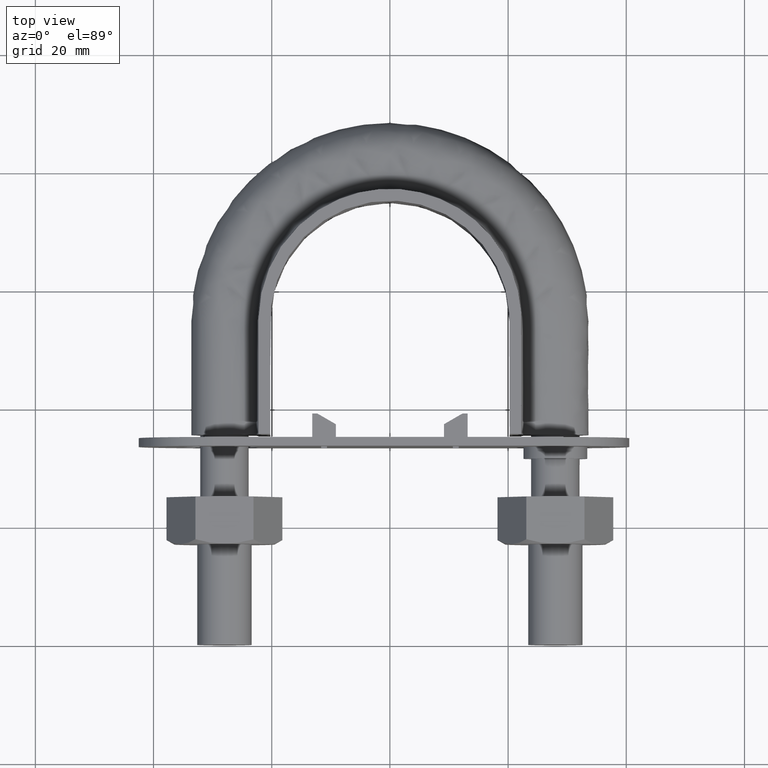
[diagram: clean part render]
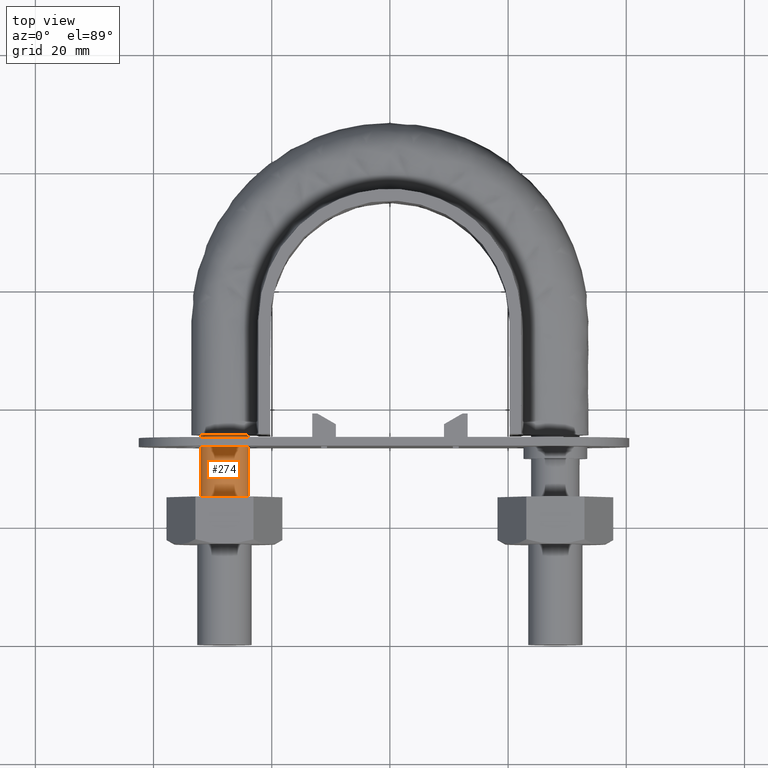
[diagram: same view with one face highlighted and labeled with its STEP entity id]
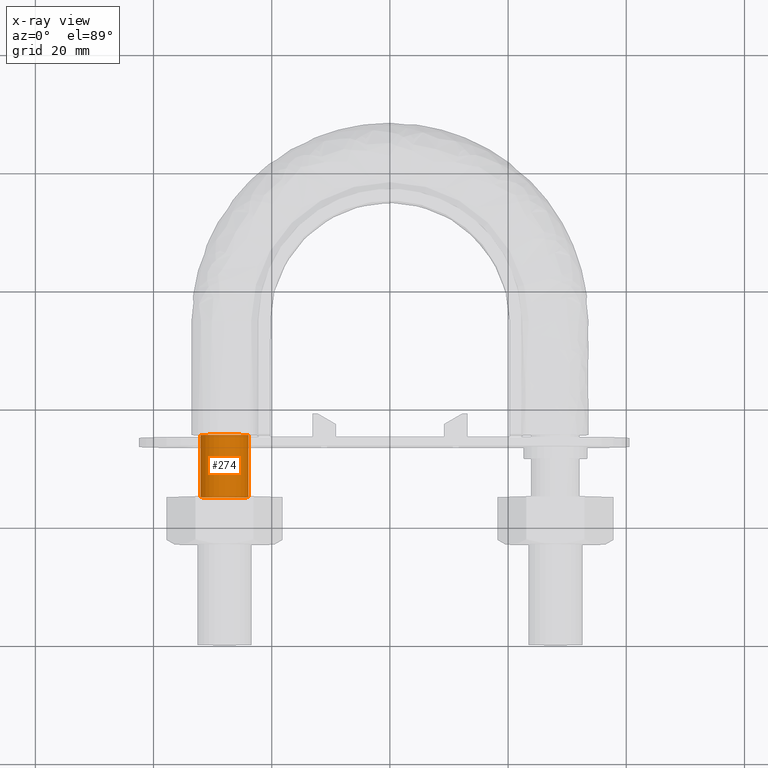
[diagram: x-ray of the same camera — body ghosted, the highlighted face saturated]
A machine part, top view. The second image highlights one B-rep face of the part: STEP entity #274.
The next image is the same camera in x-ray: the body ghosted, the highlighted face saturated — about 0% of this face is hidden behind the body in this view.
In plain terms, the highlighted cylindrical surface (bore or boss wall) has radius 4.1 mm, axis along (0, 1, 0).
Its self-contained STEP definition (entity closure, byte-faithful):
#274 = ADVANCED_FACE( '', ( #398, #399 ), #400, .T. );
#398 = FACE_OUTER_BOUND( '', #1331, .T. );
#399 = FACE_OUTER_BOUND( '', #1332, .T. );
#400 = CYLINDRICAL_SURFACE( '', #1333, 4.10000000000000 );
#1331 = EDGE_LOOP( '', ( #1778, #1779, #1780, #1781, #1782, #1783, #1784 ) );
#1332 = EDGE_LOOP( '', ( #1785 ) );
#1333 = AXIS2_PLACEMENT_3D( '', #1786, #1787, #1788 );
#1778 = ORIENTED_EDGE( '', *, *, #2559, .T. );
#1779 = ORIENTED_EDGE( '', *, *, #2560, .T. );
#1780 = ORIENTED_EDGE( '', *, *, #2561, .T. );
#1781 = ORIENTED_EDGE( '', *, *, #2562, .T. );
#1782 = ORIENTED_EDGE( '', *, *, #2563, .T. );
#1783 = ORIENTED_EDGE( '', *, *, #2564, .T. );
#1784 = ORIENTED_EDGE( '', *, *, #2565, .T. );
#1785 = ORIENTED_EDGE( '', *, *, #2566, .T. );
#1786 = CARTESIAN_POINT( '', ( -28.0000000000000, 35.5000000000000, 6.52102883410416E-015 ) );
#1787 = DIRECTION( '', ( 1.22460635382238E-016, 1.00000000000000, 1.83690953073357E-016 ) );
#1788 = DIRECTION( '', ( -1.00000000000000, 1.22460635382238E-016, 0.000000000000000 ) );
#2559 = EDGE_CURVE( '', #2809, #2810, #2811, .T. );
#2560 = EDGE_CURVE( '', #2810, #2812, #2813, .T. );
#2561 = EDGE_CURVE( '', #2812, #2814, #2815, .T. );
#2562 = EDGE_CURVE( '', #2814, #2816, #2817, .T. );
#2563 = EDGE_CURVE( '', #2816, #2818, #2819, .T. );
#2564 = EDGE_CURVE( '', #2818, #2820, #2821, .T. );
#2565 = EDGE_CURVE( '', #2820, #2809, #2822, .T. );
#2566 = EDGE_CURVE( '', #2823, #2823, #2824, .F. );
#2809 = VERTEX_POINT( '', #3403 );
#2810 = VERTEX_POINT( '', #3404 );
#2811 = CIRCLE( '', #3405, 4.10000000000000 );
#2812 = VERTEX_POINT( '', #3406 );
#2813 = CIRCLE( '', #3407, 4.10000000000000 );
#2814 = VERTEX_POINT( '', #3408 );
#2815 = CIRCLE( '', #3409, 4.10000000000000 );
#2816 = VERTEX_POINT( '', #3410 );
#2817 = CIRCLE( '', #3411, 4.10000000000000 );
#2818 = VERTEX_POINT( '', #3412 );
#2819 = CIRCLE( '', #3413, 4.10000000000000 );
#2820 = VERTEX_POINT( '', #3414 );
#2821 = CIRCLE( '', #3415, 4.10000000000000 );
#2822 = CIRCLE( '', #3416, 4.10000000000000 );
#2823 = VERTEX_POINT( '', #3417 );
#2824 = CIRCLE( '', #3418, 4.10000000000000 );
#3403 = CARTESIAN_POINT( '', ( -31.6939723583997, 35.5000000000000, -1.77892333038237 ) );
#3404 = CARTESIAN_POINT( '', ( -28.9123358292207, 35.5000000000000, -3.99720443994551 ) );
#3405 = AXIS2_PLACEMENT_3D( '', #4069, #4070, #4071 );
#3406 = CARTESIAN_POINT( '', ( -25.4436918123793, 35.5000000000000, -3.20550907811899 ) );
#3407 = AXIS2_PLACEMENT_3D( '', #4072, #4073, #4074 );
#3408 = CARTESIAN_POINT( '', ( -23.9000000000000, 35.5000000000000, 5.46776531644228E-014 ) );
#3409 = AXIS2_PLACEMENT_3D( '', #4075, #4076, #4077 );
#3410 = CARTESIAN_POINT( '', ( -25.4436918123815, 35.5000000000000, 3.20550907812074 ) );
#3411 = AXIS2_PLACEMENT_3D( '', #4078, #4079, #4080 );
#3412 = CARTESIAN_POINT( '', ( -28.9123358292214, 35.5000000000000, 3.99720443994537 ) );
#3413 = AXIS2_PLACEMENT_3D( '', #4081, #4082, #4083 );
#3414 = CARTESIAN_POINT( '', ( -31.6939723584001, 35.5000000000000, 1.77892333038158 ) );
#3415 = AXIS2_PLACEMENT_3D( '', #4084, #4085, #4086 );
#3416 = AXIS2_PLACEMENT_3D( '', #4087, #4088, #4089 );
#3417 = CARTESIAN_POINT( '', ( -28.0000000000000, 25.0000000000000, 4.10000000000001 ) );
#3418 = AXIS2_PLACEMENT_3D( '', #4090, #4091, #4092 );
#4069 = CARTESIAN_POINT( '', ( -28.0000000000000, 35.5000000000000, 6.52102883410416E-015 ) );
#4070 = DIRECTION( '', ( -1.22460635382238E-016, -1.00000000000000, -1.83690953073357E-016 ) );
#4071 = DIRECTION( '', ( -1.00000000000000, 1.22460635382238E-016, 0.000000000000000 ) );
#4072 = CARTESIAN_POINT( '', ( -28.0000000000000, 35.5000000000000, 6.52102883410416E-015 ) );
#4073 = DIRECTION( '', ( -1.22460635382238E-016, -1.00000000000000, -1.83690953073357E-016 ) );
#4074 = DIRECTION( '', ( -1.00000000000000, 1.22460635382238E-016, 0.000000000000000 ) );
#4075 = CARTESIAN_POINT( '', ( -28.0000000000000, 35.5000000000000, 6.52102883410416E-015 ) );
#4076 = DIRECTION( '', ( -1.22460635382238E-016, -1.00000000000000, -1.83690953073357E-016 ) );
#4077 = DIRECTION( '', ( -1.00000000000000, 1.22460635382238E-016, 0.000000000000000 ) );
#4078 = CARTESIAN_POINT( '', ( -28.0000000000000, 35.5000000000000, 6.52102883410416E-015 ) );
#4079 = DIRECTION( '', ( -1.22460635382238E-016, -1.00000000000000, -1.83690953073357E-016 ) );
#4080 = DIRECTION( '', ( -1.00000000000000, 1.22460635382238E-016, 0.000000000000000 ) );
#4081 = CARTESIAN_POINT( '', ( -28.0000000000000, 35.5000000000000, 6.52102883410416E-015 ) );
#4082 = DIRECTION( '', ( -1.22460635382238E-016, -1.00000000000000, -1.83690953073357E-016 ) );
#4083 = DIRECTION( '', ( -1.00000000000000, 1.22460635382238E-016, 0.000000000000000 ) );
#4084 = CARTESIAN_POINT( '', ( -28.0000000000000, 35.5000000000000, 6.52102883410416E-015 ) );
#4085 = DIRECTION( '', ( -1.22460635382238E-016, -1.00000000000000, -1.83690953073357E-016 ) );
#4086 = DIRECTION( '', ( -1.00000000000000, 1.22460635382238E-016, 0.000000000000000 ) );
#4087 = CARTESIAN_POINT( '', ( -28.0000000000000, 35.5000000000000, 6.52102883410416E-015 ) );
#4088 = DIRECTION( '', ( -1.22460635382238E-016, -1.00000000000000, -1.83690953073357E-016 ) );
#4089 = DIRECTION( '', ( -1.00000000000000, 1.22460635382238E-016, 0.000000000000000 ) );
#4090 = CARTESIAN_POINT( '', ( -28.0000000000000, 25.0000000000000, 4.59227382683392E-015 ) );
#4091 = DIRECTION( '', ( -1.22460635382238E-016, -1.00000000000000, -1.83690953073357E-016 ) );
#4092 = DIRECTION( '', ( -2.24949108273321E-032, -1.83690953073357E-016, 1.00000000000000 ) );